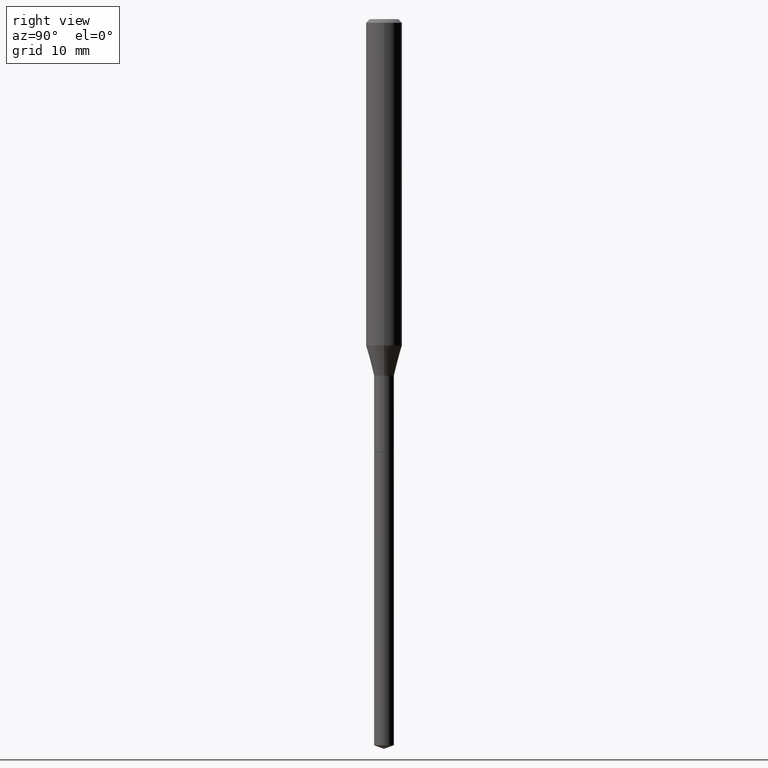
[diagram: clean part render]
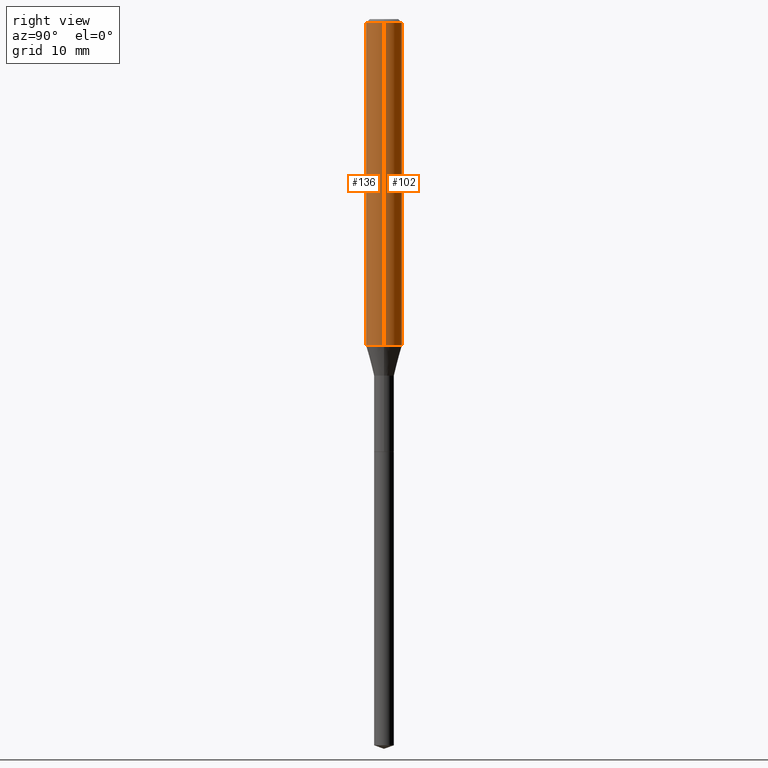
[diagram: same view with one multi-face feature highlighted, each face labeled with its STEP entity id]
A machine part, right view. The highlighted faces form ONE feature: a constant-radius fillet chain: 2 tangent blend faces with common blend radius 2.0003 mm. The faces share edges in the B-rep.
Their STEP definitions:
[1] entity #136 (Cylinder):
#9 = CIRCLE ( 'NONE', #289, 0.07875000000000000056 ) ;
#50 = VERTEX_POINT ( 'NONE', #265 ) ;
#70 = CYLINDRICAL_SURFACE ( 'NONE', #157, 0.07875000000000008382 ) ;
#72 = EDGE_CURVE ( 'NONE', #50, #359, #294, .T. ) ;
#79 = AXIS2_PLACEMENT_3D ( 'NONE', #475, #141, #100 ) ;
#84 = EDGE_CURVE ( 'NONE', #359, #140, #406, .T. ) ;
#100 = DIRECTION ( 'NONE',  ( 1.000000000000000000, -6.982962677686271444E-15, 0.000000000000000000 ) ) ;
#103 = ORIENTED_EDGE ( 'NONE', *, *, #260, .F. ) ;
#112 = DIRECTION ( 'NONE',  ( -2.445468806185136597E-29, 3.491481338843145583E-15, 1.000000000000000000 ) ) ;
#127 = ORIENTED_EDGE ( 'NONE', *, *, #84, .T. ) ;
#136 = ADVANCED_FACE ( 'NONE', ( #233 ), #70, .T. ) ;
#140 = VERTEX_POINT ( 'NONE', #193 ) ;
#141 = DIRECTION ( 'NONE',  ( -2.445468806185136597E-29, 3.491481338843145583E-15, 1.000000000000000000 ) ) ;
#144 = CARTESIAN_POINT ( 'NONE',  ( -0.07875000000000008382, 5.595524044110794920E-16, -3.873661383575742696E-30 ) ) ;
#157 = AXIS2_PLACEMENT_3D ( 'NONE', #456, #112, #415 ) ;
#175 = DIRECTION ( 'NONE',  ( 1.000000000000000000, -6.982962677686265922E-15, 0.000000000000000000 ) ) ;
#193 = CARTESIAN_POINT ( 'NONE',  ( 0.07875000000000000056, -6.048991419545733705E-16, -0.01575000000000009379 ) ) ;
#233 = FACE_OUTER_BOUND ( 'NONE', #486, .T. ) ;
#256 = VECTOR ( 'NONE', #355, 39.37007874015748143 ) ;
#260 = EDGE_CURVE ( 'NONE', #50, #323, #490, .T. ) ;
#265 = CARTESIAN_POINT ( 'NONE',  ( -0.07875000000000016709, -4.417899198526604658E-15, -1.425598798871683170 ) ) ;
#266 = CARTESIAN_POINT ( 'NONE',  ( -0.07875000000000000056, -1.956668812601151806E-15, -0.01575000000000009379 ) ) ;
#271 = VECTOR ( 'NONE', #412, 39.37007874015748143 ) ;
#289 = AXIS2_PLACEMENT_3D ( 'NONE', #407, #442, #175 ) ;
#294 = CIRCLE ( 'NONE', #79, 0.07875000000000016709 ) ;
#317 = ORIENTED_EDGE ( 'NONE', *, *, #352, .F. ) ;
#323 = VERTEX_POINT ( 'NONE', #266 ) ;
#348 = ORIENTED_EDGE ( 'NONE', *, *, #72, .T. ) ;
#352 = EDGE_CURVE ( 'NONE', #323, #140, #9, .T. ) ;
#355 = DIRECTION ( 'NONE',  ( -2.445468806185136877E-29, 3.491481338843145188E-15, 1.000000000000000000 ) ) ;
#359 = VERTEX_POINT ( 'NONE', #371 ) ;
#371 = CARTESIAN_POINT ( 'NONE',  ( 0.07875000000000016709, -5.527359913805479171E-15, -1.425598798871683170 ) ) ;
#406 = LINE ( 'NONE', #411, #271 ) ;
#407 = CARTESIAN_POINT ( 'NONE',  ( 3.851613369741613048E-31, -5.499083108677987075E-17, -0.01575000000000009379 ) ) ;
#411 = CARTESIAN_POINT ( 'NONE',  ( 0.07875000000000008382, -5.499083108677941345E-16, 3.839989210939303220E-30 ) ) ;
#412 = DIRECTION ( 'NONE',  ( -2.445468806185136877E-29, 3.491481338843145188E-15, 1.000000000000000000 ) ) ;
#415 = DIRECTION ( 'NONE',  ( 1.000000000000000000, -6.982962677686267499E-15, 4.876176775795935232E-29 ) ) ;
#442 = DIRECTION ( 'NONE',  ( -2.445468806185136597E-29, 3.491481338843145583E-15, 1.000000000000000000 ) ) ;
#456 = CARTESIAN_POINT ( 'NONE',  ( 0.000000000000000000, 0.000000000000000000, 0.000000000000000000 ) ) ;
#475 = CARTESIAN_POINT ( 'NONE',  ( 3.486257392775699753E-29, -4.977451602937685037E-15, -1.425598798871683170 ) ) ;
#486 = EDGE_LOOP ( 'NONE', ( #103, #348, #127, #317 ) ) ;
#490 = LINE ( 'NONE', #144, #256 ) ;
[2] entity #102 (Cylinder):
#8 = ORIENTED_EDGE ( 'NONE', *, *, #427, .T. ) ;
#50 = VERTEX_POINT ( 'NONE', #265 ) ;
#67 = FACE_OUTER_BOUND ( 'NONE', #319, .T. ) ;
#84 = EDGE_CURVE ( 'NONE', #359, #140, #406, .T. ) ;
#102 = ADVANCED_FACE ( 'NONE', ( #67 ), #223, .T. ) ;
#114 = DIRECTION ( 'NONE',  ( -2.445468806185136597E-29, 3.491481338843145583E-15, 1.000000000000000000 ) ) ;
#140 = VERTEX_POINT ( 'NONE', #193 ) ;
#144 = CARTESIAN_POINT ( 'NONE',  ( -0.07875000000000008382, 5.595524044110794920E-16, -3.873661383575742696E-30 ) ) ;
#149 = CIRCLE ( 'NONE', #339, 0.07875000000000000056 ) ;
#150 = AXIS2_PLACEMENT_3D ( 'NONE', #278, #114, #460 ) ;
#169 = CIRCLE ( 'NONE', #150, 0.07875000000000016709 ) ;
#184 = ORIENTED_EDGE ( 'NONE', *, *, #211, .F. ) ;
#188 = AXIS2_PLACEMENT_3D ( 'NONE', #226, #214, #372 ) ;
#193 = CARTESIAN_POINT ( 'NONE',  ( 0.07875000000000000056, -6.048991419545733705E-16, -0.01575000000000009379 ) ) ;
#211 = EDGE_CURVE ( 'NONE', #140, #323, #149, .T. ) ;
#214 = DIRECTION ( 'NONE',  ( -2.445468806185136597E-29, 3.491481338843145583E-15, 1.000000000000000000 ) ) ;
#223 = CYLINDRICAL_SURFACE ( 'NONE', #188, 0.07875000000000008382 ) ;
#226 = CARTESIAN_POINT ( 'NONE',  ( 0.000000000000000000, 0.000000000000000000, 0.000000000000000000 ) ) ;
#236 = DIRECTION ( 'NONE',  ( 1.000000000000000000, -6.982962677686265922E-15, 0.000000000000000000 ) ) ;
#243 = ORIENTED_EDGE ( 'NONE', *, *, #84, .F. ) ;
#256 = VECTOR ( 'NONE', #355, 39.37007874015748143 ) ;
#260 = EDGE_CURVE ( 'NONE', #50, #323, #490, .T. ) ;
#265 = CARTESIAN_POINT ( 'NONE',  ( -0.07875000000000016709, -4.417899198526604658E-15, -1.425598798871683170 ) ) ;
#266 = CARTESIAN_POINT ( 'NONE',  ( -0.07875000000000000056, -1.956668812601151806E-15, -0.01575000000000009379 ) ) ;
#271 = VECTOR ( 'NONE', #412, 39.37007874015748143 ) ;
#278 = CARTESIAN_POINT ( 'NONE',  ( 3.486257392775699753E-29, -4.977451602937685037E-15, -1.425598798871683170 ) ) ;
#301 = DIRECTION ( 'NONE',  ( -2.445468806185136597E-29, 3.491481338843145583E-15, 1.000000000000000000 ) ) ;
#312 = ORIENTED_EDGE ( 'NONE', *, *, #260, .T. ) ;
#319 = EDGE_LOOP ( 'NONE', ( #8, #312, #184, #243 ) ) ;
#323 = VERTEX_POINT ( 'NONE', #266 ) ;
#339 = AXIS2_PLACEMENT_3D ( 'NONE', #373, #301, #236 ) ;
#355 = DIRECTION ( 'NONE',  ( -2.445468806185136877E-29, 3.491481338843145188E-15, 1.000000000000000000 ) ) ;
#359 = VERTEX_POINT ( 'NONE', #371 ) ;
#371 = CARTESIAN_POINT ( 'NONE',  ( 0.07875000000000016709, -5.527359913805479171E-15, -1.425598798871683170 ) ) ;
#372 = DIRECTION ( 'NONE',  ( 1.000000000000000000, -6.982962677686267499E-15, 4.876176775795935232E-29 ) ) ;
#373 = CARTESIAN_POINT ( 'NONE',  ( 3.851613369741613048E-31, -5.499083108677987075E-17, -0.01575000000000009379 ) ) ;
#406 = LINE ( 'NONE', #411, #271 ) ;
#411 = CARTESIAN_POINT ( 'NONE',  ( 0.07875000000000008382, -5.499083108677941345E-16, 3.839989210939303220E-30 ) ) ;
#412 = DIRECTION ( 'NONE',  ( -2.445468806185136877E-29, 3.491481338843145188E-15, 1.000000000000000000 ) ) ;
#427 = EDGE_CURVE ( 'NONE', #359, #50, #169, .T. ) ;
#460 = DIRECTION ( 'NONE',  ( 1.000000000000000000, -6.982962677686271444E-15, 0.000000000000000000 ) ) ;
#490 = LINE ( 'NONE', #144, #256 ) ;